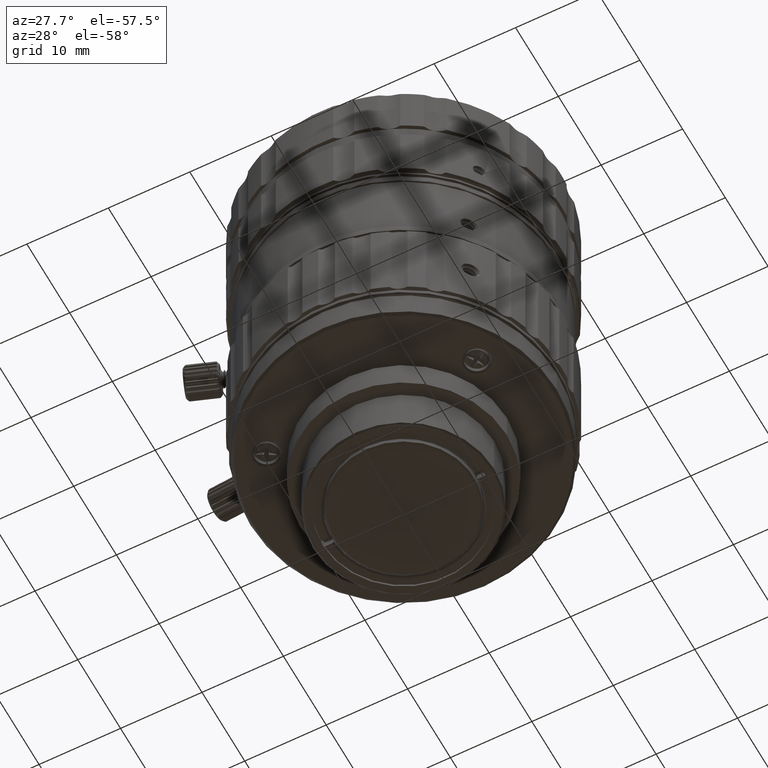
[diagram: clean part render]
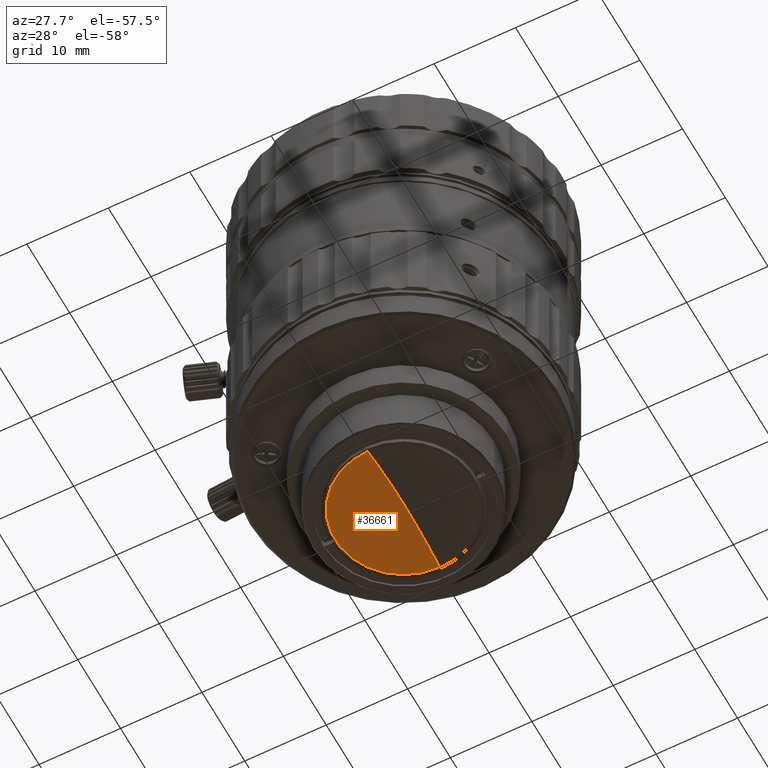
[diagram: same view with one face highlighted and labeled with its STEP entity id]
A machine part, auxiliary view. The second image highlights one B-rep face of the part: STEP entity #36661.
In plain terms, the highlighted spherical surface has radius 32.876 mm.
Its self-contained STEP definition (entity closure, byte-faithful):
#465 = CIRCLE ( 'NONE', #19395, 32.87600000000000477 ) ;
#3888 = ORIENTED_EDGE ( 'NONE', *, *, #10457, .T. ) ;
#4129 = DIRECTION ( 'NONE',  ( 0.000000000000000000, 0.000000000000000000, -1.000000000000000000 ) ) ;
#4916 = DIRECTION ( 'NONE',  ( -1.224646799147353207E-16, 1.000000000000000000, 0.000000000000000000 ) ) ;
#9625 = EDGE_LOOP ( 'NONE', ( #65497, #38035, #3888 ) ) ;
#10203 = CARTESIAN_POINT ( 'NONE',  ( 0.000000000000000000, 0.000000000000000000, -43.77152233252999736 ) ) ;
#10457 = EDGE_CURVE ( 'NONE', #63539, #34108, #32921, .T. ) ;
#13844 = DIRECTION ( 'NONE',  ( -1.000000000000000000, 0.000000000000000000, 0.000000000000000000 ) ) ;
#16784 = DIRECTION ( 'NONE',  ( 1.000000000000000000, 1.224646799147353207E-16, 7.498798913309293513E-33 ) ) ;
#19131 = CARTESIAN_POINT ( 'NONE',  ( 0.000000000000000000, 0.000000000000000000, -11.99112108034299951 ) ) ;
#19395 = AXIS2_PLACEMENT_3D ( 'NONE', #47830, #16784, #4916 ) ;
#24014 = CARTESIAN_POINT ( 'NONE',  ( 0.000000000000000000, -1.215683958752155682E-30, -10.89552233252999436 ) ) ;
#26861 = EDGE_CURVE ( 'NONE', #38756, #34108, #48336, .T. ) ;
#32921 = CIRCLE ( 'NONE', #39616, 8.416500000000000981 ) ;
#34108 = VERTEX_POINT ( 'NONE', #48859 ) ;
#34419 = CARTESIAN_POINT ( 'NONE',  ( 0.000000000000000000, 0.000000000000000000, -43.77152233252999736 ) ) ;
#35652 = FACE_OUTER_BOUND ( 'NONE', #9625, .T. ) ;
#35775 = DIRECTION ( 'NONE',  ( 0.000000000000000000, 0.000000000000000000, 1.000000000000000000 ) ) ;
#36061 = AXIS2_PLACEMENT_3D ( 'NONE', #34419, #13844, #35775 ) ;
#36661 = ADVANCED_FACE ( 'NONE', ( #35652 ), #36679, .F. ) ;
#36679 = SPHERICAL_SURFACE ( 'NONE', #64954, 32.87600000000000477 ) ;
#38035 = ORIENTED_EDGE ( 'NONE', *, *, #68698, .T. ) ;
#38756 = VERTEX_POINT ( 'NONE', #24014 ) ;
#39616 = AXIS2_PLACEMENT_3D ( 'NONE', #19131, #4129, #41089 ) ;
#41089 = DIRECTION ( 'NONE',  ( 0.000000000000000000, 1.000000000000000000, 0.000000000000000000 ) ) ;
#43392 = CARTESIAN_POINT ( 'NONE',  ( 1.030723978502338683E-15, -8.416499999999746962, -11.99112108034300128 ) ) ;
#47830 = CARTESIAN_POINT ( 'NONE',  ( 0.000000000000000000, 0.000000000000000000, -43.77152233252999736 ) ) ;
#48336 = CIRCLE ( 'NONE', #36061, 32.87600000000000477 ) ;
#48859 = CARTESIAN_POINT ( 'NONE',  ( 0.000000000000000000, 8.416499999999746962, -11.99112108034300128 ) ) ;
#52752 = DIRECTION ( 'NONE',  ( 0.000000000000000000, 1.000000000000000000, 0.000000000000000000 ) ) ;
#63539 = VERTEX_POINT ( 'NONE', #43392 ) ;
#64954 = AXIS2_PLACEMENT_3D ( 'NONE', #10203, #67804, #52752 ) ;
#65497 = ORIENTED_EDGE ( 'NONE', *, *, #26861, .F. ) ;
#67804 = DIRECTION ( 'NONE',  ( 1.000000000000000000, -0.000000000000000000, 0.000000000000000000 ) ) ;
#68698 = EDGE_CURVE ( 'NONE', #38756, #63539, #465, .T. ) ;